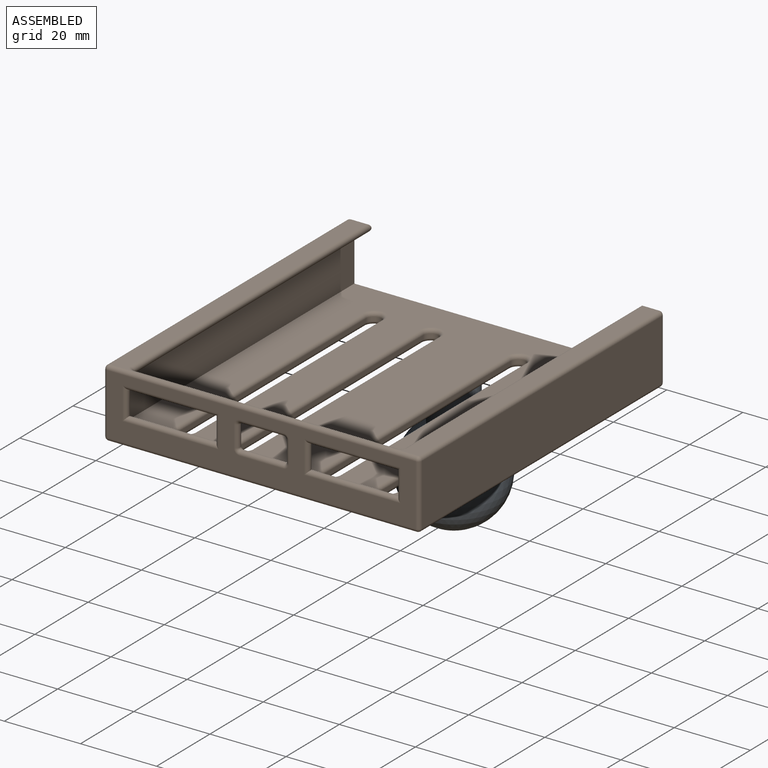
[diagram: assembled view]
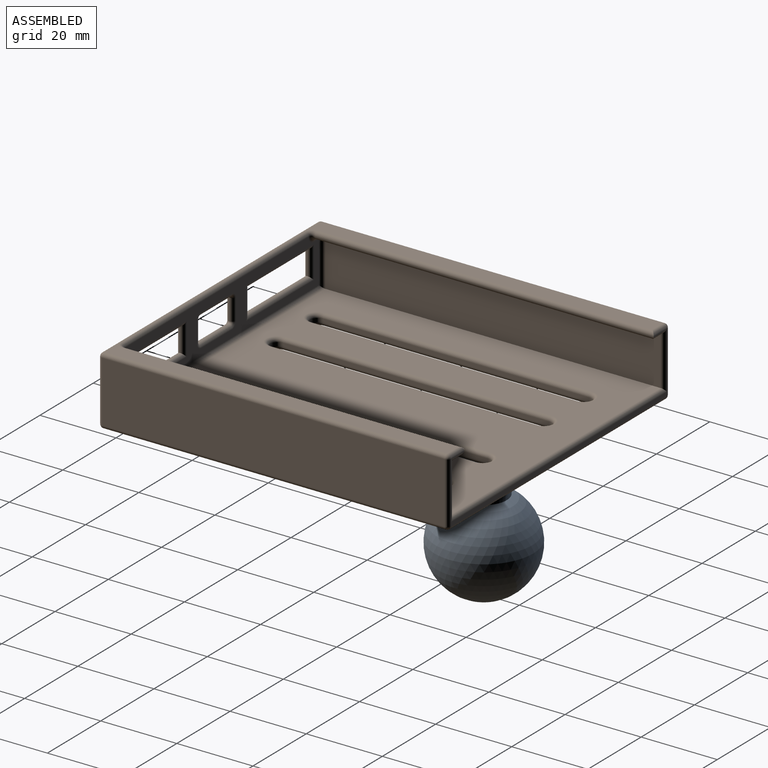
[diagram: assembled view, second angle]
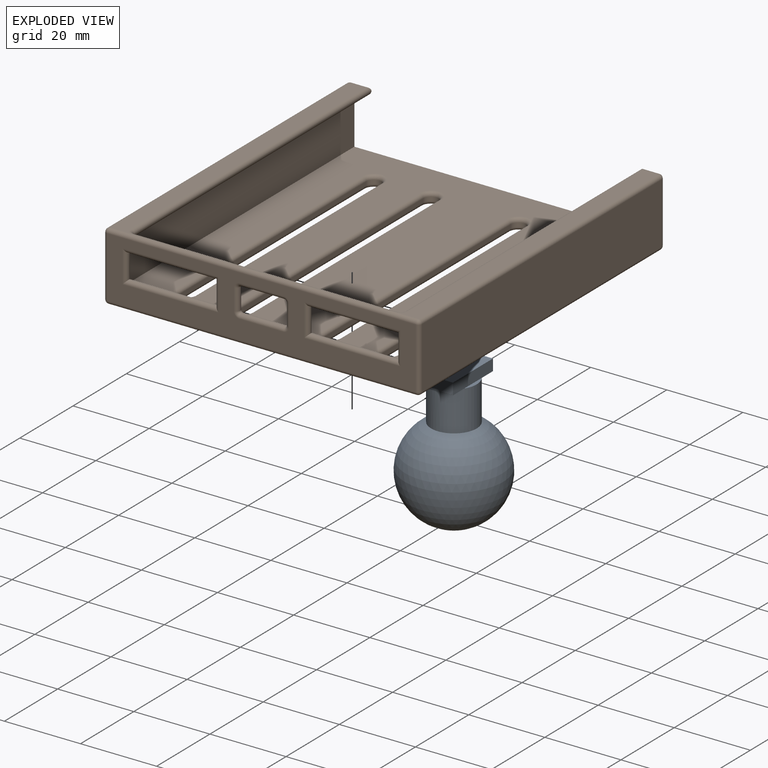
[diagram: exploded view]
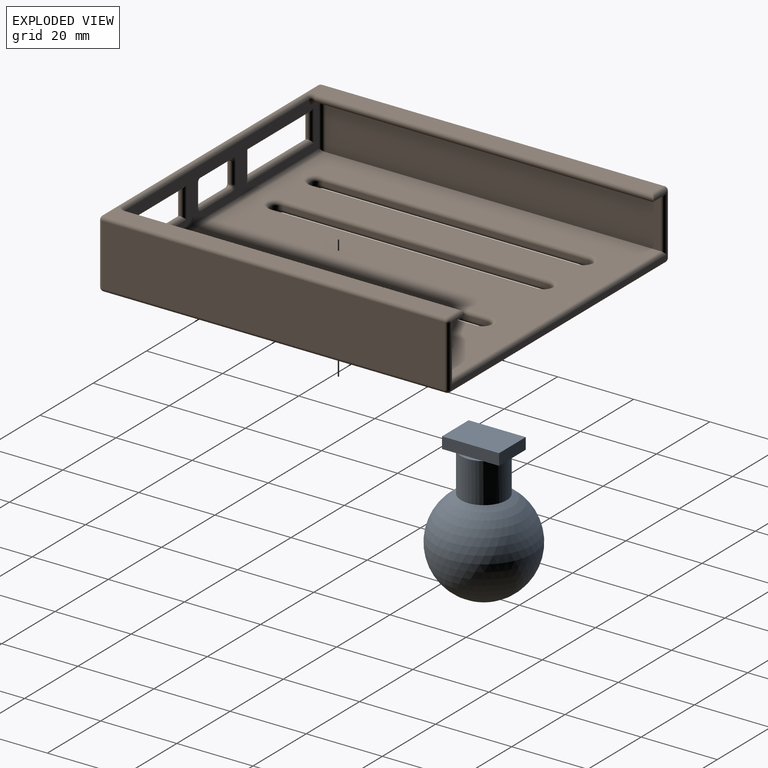
[diagram: exploded view, second angle]
ASSEMBLY  parts=2 mates=2
PART A: 11 faces, bbox 26x26x38 mm
  f0: plane 6.63x1mm, normal (0,0,-1), area 4.5mm2, adj f2,f6
  f1: sphere r=13mm, area 2003.9mm2, adj f2
  f2: cylinder r=6mm len=12mm, axis (0,0,1), area 394.6mm2, adj f0,f1,f3,f4,f10
  f3: plane 6.63x1mm, normal (0,0,-1), area 4.5mm2, adj f2,f8
  f4: plane 10x4.18mm, normal (0,0,1), area 23mm2, adj f2,f5,f6,f8
  f5: plane 10x3mm, normal (0,1,0), area 30mm2, adj f4,f6,f8,f9
  f6: plane 15x3mm, normal (1,0,0), area 45mm2, adj f0,f4,f5,f7,f9,f10
  f7: plane 10x3mm, normal (0,-1,0), area 30mm2, adj f6,f8,f9,f10
  f8: plane 15x3mm, normal (-1,0,0), area 45mm2, adj f3,f4,f5,f7,f9,f10
  f9: plane 15x10mm, normal (0,0,-1), area 150mm2, adj f5,f6,f7,f8
  f10: plane 10x4.18mm, normal (0,0,1), area 23mm2, adj f2,f6,f7,f8
PART B: 115 faces, bbox 83x92x18 mm
  f0: plane 90x81mm, normal (0,0,-1), area 5341.9mm2, adj f45,f46,f55,f56,f94,f95,f96,f97
  f1: plane 90x6mm, normal (0,0,1), area 360.9mm2, adj f51,f52,f58,f63,f64
  f2: plane 77x13mm, normal (0,1,0), area 436.1mm2, adj f29,f30,f31,f32,f33,f34,f35,f36
  f3: plane 81x16mm, normal (0,-1,0), area 745.4mm2, adj f29,f30,f31,f32,f33,f34,f35,f36
  f4: plane 88x13mm, normal (1,0,0), area 1144mm2, adj f26,f28,f66,f76
  f5: cylinder r=2mm len=4mm, axis (0,0,-1), area 6.3mm2, adj f6,f17,f90,f95
  f6: plane 70x1mm, normal (-1,0,0), area 70mm2, adj f5,f7,f91,f94
  f7: cylinder r=2mm len=4mm, axis (0,0,-1), area 6.3mm2, adj f6,f17,f93,f96
  f8: cylinder r=2mm len=4mm, axis (0,0,-1), area 6.3mm2, adj f9,f18,f86,f99
  f9: plane 70x1mm, normal (-1,0,0), area 70mm2, adj f8,f10,f87,f98
  f10: cylinder r=2mm len=4mm, axis (0,0,-1), area 6.3mm2, adj f9,f18,f89,f100
  f11: cylinder r=2mm len=4mm, axis (0,0,-1), area 6.3mm2, adj f12,f19,f82,f103
  f12: plane 70x1mm, normal (-1,0,0), area 70mm2, adj f11,f13,f83,f102
  f13: cylinder r=2mm len=4mm, axis (0,0,-1), area 6.3mm2, adj f12,f19,f85,f104
  f14: cylinder r=2mm len=4mm, axis (0,0,-1), area 6.3mm2, adj f15,f20,f78,f107
  f15: plane 70x1mm, normal (-1,0,0), area 70mm2, adj f14,f16,f79,f106
  f16: cylinder r=2mm len=4mm, axis (0,0,-1), area 6.3mm2, adj f15,f20,f81,f108
  f17: plane 70x1mm, normal (1,0,0), area 70mm2, adj f5,f7,f92,f97
  f18: plane 70x1mm, normal (1,0,0), area 70mm2, adj f8,f10,f88,f101
  f19: plane 70x1mm, normal (1,0,0), area 70mm2, adj f11,f13,f84,f105
  f20: plane 70x1mm, normal (1,0,0), area 70mm2, adj f14,f16,f80,f109
  f21: plane 90x16mm, normal (1,0,0), area 1440mm2, adj f46,f52,f53,f57
  f22: plane 81x1mm, normal (0,1,0), area 81mm2, adj f56,f57,f66,f67
  f23: plane 90x16mm, normal (-1,0,0), area 1440mm2, adj f54,f55,f61,f66
  f24: plane 90x6mm, normal (0,0,1), area 360.9mm2, adj f61,f64,f69,f71,f72
  f25: plane 88x13mm, normal (-1,0,0), area 1144mm2, adj f26,f27,f57,f73
  f26: plane 88x79mm, normal (0,0,1), area 5158.9mm2, adj f4,f25,f67,f74,f78,f79,f80,f81
  f27: plane 88x3mm, normal (0,0,-1), area 264mm2, adj f25,f51,f58,f70
  f28: plane 88x3mm, normal (0,0,-1), area 264mm2, adj f4,f69,f72,f77
  f29: cylinder r=1mm len=25.25mm, axis (-1,0,0), area 75.3mm2, adj f2,f3,f30,f31
  f30: cylinder r=1mm len=8.5mm, axis (0,0,1), area 22.7mm2, adj f2,f3,f29,f32
  f31: cylinder r=1mm len=8.5mm, axis (0,0,-1), area 22.7mm2, adj f2,f3,f29,f32
  f32: cylinder r=1mm len=25.25mm, axis (1,0,0), area 75.3mm2, adj f2,f3,f30,f31
  f33: cylinder r=1mm len=25.25mm, axis (-1,0,0), area 75.3mm2, adj f2,f3,f34,f35
  f34: cylinder r=1mm len=8.5mm, axis (0,0,1), area 22.7mm2, adj f2,f3,f33,f36
  f35: cylinder r=1mm len=8.5mm, axis (0,0,-1), area 22.7mm2, adj f2,f3,f33,f36
  f36: cylinder r=1mm len=25.25mm, axis (1,0,0), area 75.3mm2, adj f2,f3,f34,f35
  f37: cylinder r=1mm len=5.5mm, axis (0,0,1), area 17.3mm2, adj f2,f3,f38,f39
  f38: torus R=1.5mm, axis (0,-1,0), area 4.3mm2, adj f2,f3,f37,f40
  f39: torus R=1.5mm, axis (0,-1,0), area 4.3mm2, adj f2,f3,f37,f41
  f40: cylinder r=1mm len=11.5mm, axis (1,0,0), area 36.1mm2, adj f2,f3,f38,f42
  f41: cylinder r=1mm len=11.5mm, axis (-1,0,0), area 36.1mm2, adj f2,f3,f39,f43
  f42: torus R=1.5mm, axis (0,-1,0), area 4.3mm2, adj f2,f3,f40,f44
  f43: torus R=1.5mm, axis (0,-1,0), area 4.3mm2, adj f2,f3,f41,f44
  f44: cylinder r=1mm len=5.5mm, axis (0,0,-1), area 17.3mm2, adj f2,f3,f42,f43
  f45: cylinder r=1mm len=81mm, axis (1,0,0), area 127.2mm2, adj f0,f3,f47,f48
  f46: cylinder r=1mm len=90mm, axis (0,1,0), area 141.4mm2, adj f0,f21,f47,f49
  f47: sphere r=1mm, area 1.6mm2, adj f45,f46,f53
  f48: sphere r=1mm, area 1.6mm2, adj f45,f54,f55
  f49: sphere r=1mm, area 1.6mm2, adj f46,f56,f57
  f50: sphere r=1mm, area 1.6mm2, adj f51,f52,f57
  f51: cylinder r=1mm len=5mm, axis (1,0,0), area 13.6mm2, adj f1,f27,f50,f57,f58
  f52: cylinder r=1mm len=90mm, axis (0,-1,0), area 141.4mm2, adj f1,f21,f50,f59
  f53: cylinder r=1mm len=16mm, axis (0,0,1), area 25.1mm2, adj f3,f21,f47,f59
  f54: cylinder r=1mm len=16mm, axis (0,0,-1), area 25.1mm2, adj f3,f23,f48,f60
  f55: cylinder r=1mm len=90mm, axis (0,-1,0), area 141.4mm2, adj f0,f23,f48,f62
  f56: cylinder r=1mm len=81mm, axis (-1,0,0), area 127.2mm2, adj f0,f22,f49,f62
  f57: cylinder r=1mm len=16mm, axis (0,0,-1), area 46.7mm2, adj f21,f22,f25,f49,f50,f51,f67
  f58: cylinder r=1mm len=89mm, axis (0,1,0), area 278.5mm2, adj f1,f27,f51,f63,f68
  f59: sphere r=1mm, area 1.6mm2, adj f52,f53,f64
  f60: sphere r=1mm, area 1.6mm2, adj f54,f61,f64
  f61: cylinder r=1mm len=90mm, axis (0,1,0), area 141.4mm2, adj f23,f24,f60,f65
  f62: sphere r=1mm, area 1.6mm2, adj f55,f56,f66
  f63: torus R=2mm, axis (0,0,1), area 3.4mm2, adj f1,f58,f64,f68
  f64: cylinder r=1mm len=81mm, axis (-1,0,0), area 235.6mm2, adj f1,f2,f3,f24,f59,f60,f63,f71
  f65: sphere r=1mm, area 1.6mm2, adj f61,f66,f69
  f66: cylinder r=1mm len=16mm, axis (0,0,1), area 46.7mm2, adj f4,f22,f23,f62,f65,f67,f69
  f67: cylinder r=1mm len=81mm, axis (1,0,0), area 125.2mm2, adj f22,f26,f57,f66
  f68: torus R=2mm, axis (0,-1,0), area 3.4mm2, adj f2,f58,f63,f70
  f69: cylinder r=1mm len=5mm, axis (1,0,0), area 13.6mm2, adj f24,f28,f65,f66,f72
  f70: cylinder r=1mm len=3mm, axis (1,0,0), area 4.1mm2, adj f2,f27,f68,f73
  f71: torus R=2mm, axis (0,0,1), area 3.4mm2, adj f24,f64,f72,f75
  f72: cylinder r=1mm len=89mm, axis (0,-1,0), area 278.5mm2, adj f24,f28,f69,f71,f75
  f73: cylinder r=1mm len=13mm, axis (0,0,-1), area 19.3mm2, adj f2,f25,f70,f74
  f74: cylinder r=1mm len=79mm, axis (1,0,0), area 123mm2, adj f2,f26,f73,f76
  f75: torus R=2mm, axis (0,-1,0), area 3.4mm2, adj f2,f71,f72,f77
  f76: cylinder r=1mm len=13mm, axis (0,0,-1), area 19.3mm2, adj f2,f4,f74,f77
  f77: cylinder r=1mm len=3mm, axis (1,0,0), area 4.1mm2, adj f2,f28,f75,f76
  f78: torus R=3mm, axis (0,0,1), area 11.7mm2, adj f14,f26,f79,f80
  f79: cylinder r=1mm len=70mm, axis (0,1,0), area 110mm2, adj f15,f26,f78,f81
  f80: cylinder r=1mm len=70mm, axis (0,-1,0), area 110mm2, adj f20,f26,f78,f81
  f81: torus R=3mm, axis (0,0,1), area 11.7mm2, adj f16,f26,f79,f80
  f82: torus R=3mm, axis (0,0,1), area 11.7mm2, adj f11,f26,f83,f84
  f83: cylinder r=1mm len=70mm, axis (0,1,0), area 110mm2, adj f12,f26,f82,f85
  f84: cylinder r=1mm len=70mm, axis (0,-1,0), area 110mm2, adj f19,f26,f82,f85
  f85: torus R=3mm, axis (0,0,1), area 11.7mm2, adj f13,f26,f83,f84
  f86: torus R=3mm, axis (0,0,1), area 11.7mm2, adj f8,f26,f87,f88
  f87: cylinder r=1mm len=70mm, axis (0,1,0), area 110mm2, adj f9,f26,f86,f89
  f88: cylinder r=1mm len=70mm, axis (0,-1,0), area 110mm2, adj f18,f26,f86,f89
  f89: torus R=3mm, axis (0,0,1), area 11.7mm2, adj f10,f26,f87,f88
  f90: torus R=3mm, axis (0,0,1), area 11.7mm2, adj f5,f26,f91,f92
  f91: cylinder r=1mm len=70mm, axis (0,1,0), area 110mm2, adj f6,f26,f90,f93
  f92: cylinder r=1mm len=70mm, axis (0,-1,0), area 110mm2, adj f17,f26,f90,f93
  f93: torus R=3mm, axis (0,0,1), area 11.7mm2, adj f7,f26,f91,f92
  f94: cylinder r=1mm len=70mm, axis (0,-1,0), area 110mm2, adj f0,f6,f95,f96
  f95: torus R=3mm, axis (0,0,1), area 11.7mm2, adj f0,f5,f94,f97
  f96: torus R=3mm, axis (0,0,1), area 11.7mm2, adj f0,f7,f94,f97
  f97: cylinder r=1mm len=70mm, axis (0,1,0), area 110mm2, adj f0,f17,f95,f96
  f98: cylinder r=1mm len=70mm, axis (0,-1,0), area 110mm2, adj f0,f9,f99,f100
  f99: torus R=3mm, axis (0,0,1), area 11.7mm2, adj f0,f8,f98,f101
  f100: torus R=3mm, axis (0,0,1), area 11.7mm2, adj f0,f10,f98,f101
  f101: cylinder r=1mm len=70mm, axis (0,1,0), area 110mm2, adj f0,f18,f99,f100
  f102: cylinder r=1mm len=70mm, axis (0,-1,0), area 110mm2, adj f0,f12,f103,f104
  f103: torus R=3mm, axis (0,0,1), area 11.7mm2, adj f0,f11,f102,f105
  f104: torus R=3mm, axis (0,0,1), area 11.7mm2, adj f0,f13,f102,f105
  f105: cylinder r=1mm len=70mm, axis (0,1,0), area 110mm2, adj f0,f19,f103,f104
  f106: cylinder r=1mm len=70mm, axis (0,-1,0), area 110mm2, adj f0,f15,f107,f108
  f107: torus R=3mm, axis (0,0,1), area 11.7mm2, adj f0,f14,f106,f109
  f108: torus R=3mm, axis (0,0,1), area 11.7mm2, adj f0,f16,f106,f109
  f109: cylinder r=1mm len=70mm, axis (0,1,0), area 110mm2, adj f0,f20,f107,f108
  f110: plane 10.2x1.5mm, normal (0,-1,0), area 15.3mm2, adj f0,f111,f113,f114
  f111: plane 15.2x1.5mm, normal (-1,0,0), area 22.8mm2, adj f0,f110,f112,f114
  f112: plane 10.2x1.5mm, normal (0,1,0), area 15.3mm2, adj f0,f111,f113,f114
  f113: plane 15.2x1.5mm, normal (1,0,0), area 22.8mm2, adj f0,f110,f112,f114
  f114: plane 15.2x10.2mm, normal (0,0,-1), area 155mm2, adj f110,f111,f112,f113
PLACE A rot(axis=(1,0,0),180deg) t=(-15.55,-6.21,-9.93)mm
PLACE B t=(-15.55,-32.45,13.57)mm
MATE slider B.f114 <-> A.f2  axis (0,0,-1) through (-15.55,-6.21,15.07)mm
MATE fastened A.f2 <-> B.f114  axis (0,0,1) through (-15.55,-6.21,15.07)mm
